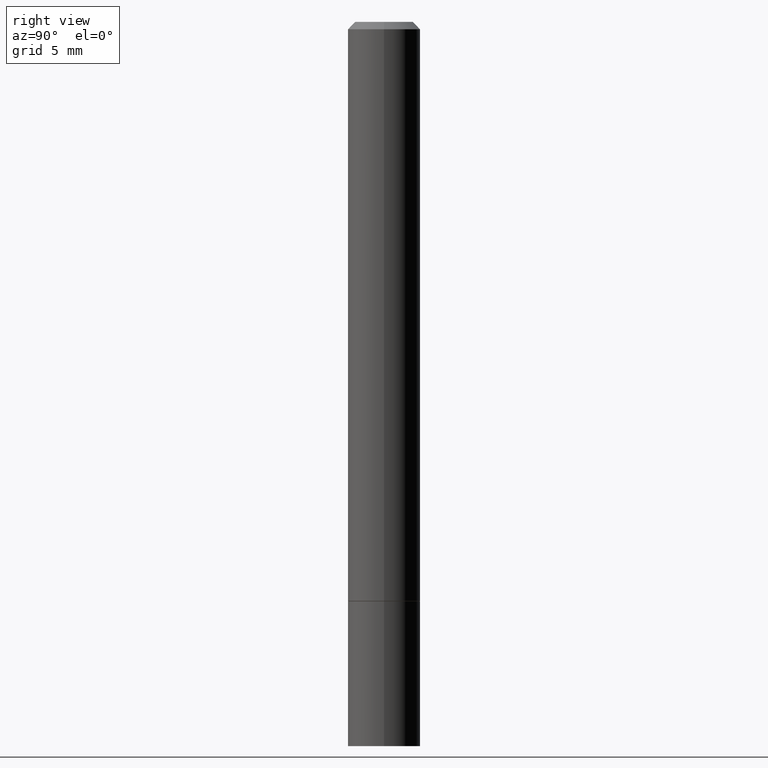
[diagram: clean part render]
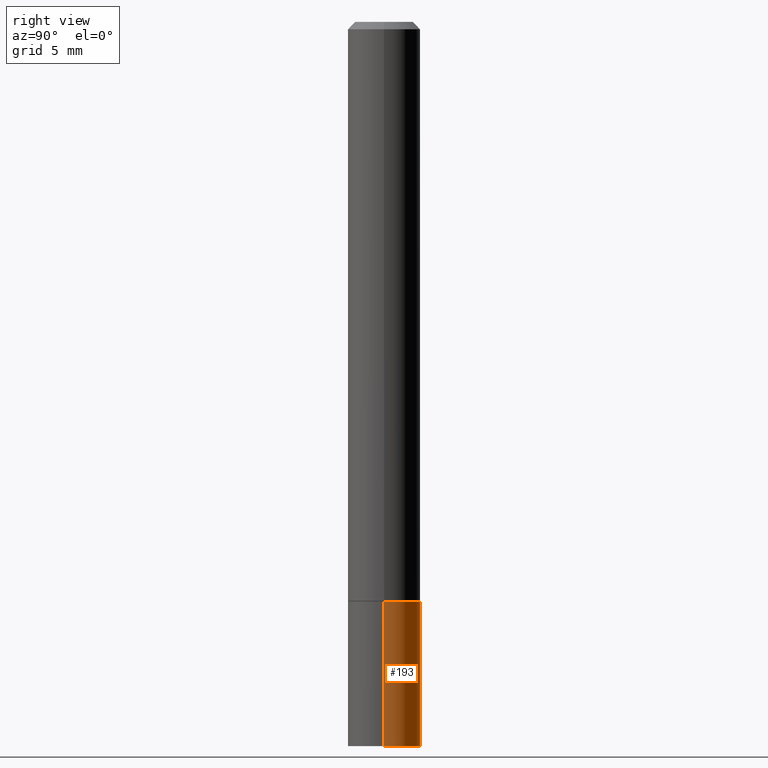
[diagram: same view with one face highlighted and labeled with its STEP entity id]
A machine part, right view. The second image highlights one B-rep face of the part: STEP entity #193.
In plain terms, the highlighted cylindrical surface (edge-blend (fillet) strip) has radius 2.5006 mm, axis along (-0, 0, 1).
Its self-contained STEP definition (entity closure, byte-faithful):
#27 = ORIENTED_EDGE ( 'NONE', *, *, #136, .T. ) ;
#32 = CIRCLE ( 'NONE', #357, 0.09844999999999999585 ) ;
#60 = AXIS2_PLACEMENT_3D ( 'NONE', #291, #290, #233 ) ;
#64 = DIRECTION ( 'NONE',  ( 1.000000000000000000, -6.982962677686265922E-15, 0.000000000000000000 ) ) ;
#78 = CARTESIAN_POINT ( 'NONE',  ( 3.851124275980353356E-29, -5.498384812410186155E-15, -1.574800000000000200 ) ) ;
#79 = DIRECTION ( 'NONE',  ( -2.445468806185136597E-29, 3.491481338843145583E-15, 1.000000000000000000 ) ) ;
#83 = VECTOR ( 'NONE', #196, 39.37007874015748143 ) ;
#84 = ORIENTED_EDGE ( 'NONE', *, *, #315, .T. ) ;
#87 = VERTEX_POINT ( 'NONE', #175 ) ;
#90 = VERTEX_POINT ( 'NONE', #202 ) ;
#93 = DIRECTION ( 'NONE',  ( -2.445468806185136597E-29, 3.491481338843145583E-15, 1.000000000000000000 ) ) ;
#96 = CARTESIAN_POINT ( 'NONE',  ( -0.09844999999999999585, -5.486153590605640426E-15, -1.574800000000000200 ) ) ;
#108 = ORIENTED_EDGE ( 'NONE', *, *, #143, .F. ) ;
#113 = VECTOR ( 'NONE', #259, 39.37007874015748143 ) ;
#123 = CARTESIAN_POINT ( 'NONE',  ( 0.09844999999999999585, -6.874726756182129545E-16, 4.800596035771099214E-30 ) ) ;
#128 = CARTESIAN_POINT ( 'NONE',  ( 0.09844999999999999585, -7.560453691130944267E-15, -1.968500000000000139 ) ) ;
#136 = EDGE_CURVE ( 'NONE', #249, #90, #32, .T. ) ;
#141 = CIRCLE ( 'NONE', #250, 0.09844999999999999585 ) ;
#143 = EDGE_CURVE ( 'NONE', #249, #87, #327, .T. ) ;
#175 = CARTESIAN_POINT ( 'NONE',  ( 0.09844999999999999585, -6.185857488028398715E-15, -1.574800000000000200 ) ) ;
#184 = DIRECTION ( 'NONE',  ( 1.000000000000000000, -6.982962677686265922E-15, 0.000000000000000000 ) ) ;
#188 = EDGE_LOOP ( 'NONE', ( #27, #84, #365, #108 ) ) ;
#193 = ADVANCED_FACE ( 'NONE', ( #239 ), #232, .T. ) ;
#196 = DIRECTION ( 'NONE',  ( -2.445468806185136877E-29, 3.491481338843145188E-15, 1.000000000000000000 ) ) ;
#198 = VERTEX_POINT ( 'NONE', #96 ) ;
#202 = CARTESIAN_POINT ( 'NONE',  ( -0.09844999999999999585, -5.486153590605640426E-15, -1.968500000000000139 ) ) ;
#232 = CYLINDRICAL_SURFACE ( 'NONE', #60, 0.09844999999999999585 ) ;
#233 = DIRECTION ( 'NONE',  ( 1.000000000000000000, -6.982962677686266711E-15, 4.876176775795936353E-29 ) ) ;
#239 = FACE_OUTER_BOUND ( 'NONE', #188, .T. ) ;
#249 = VERTEX_POINT ( 'NONE', #128 ) ;
#250 = AXIS2_PLACEMENT_3D ( 'NONE', #78, #79, #184 ) ;
#259 = DIRECTION ( 'NONE',  ( -2.445468806185136877E-29, 3.491481338843145188E-15, 1.000000000000000000 ) ) ;
#260 = LINE ( 'NONE', #321, #83 ) ;
#287 = CARTESIAN_POINT ( 'NONE',  ( 4.813905344975441835E-29, -6.872981015512731707E-15, -1.968500000000000139 ) ) ;
#289 = EDGE_CURVE ( 'NONE', #87, #198, #141, .T. ) ;
#290 = DIRECTION ( 'NONE',  ( -2.445468806185136597E-29, 3.491481338843145583E-15, 1.000000000000000000 ) ) ;
#291 = CARTESIAN_POINT ( 'NONE',  ( 0.000000000000000000, 0.000000000000000000, 0.000000000000000000 ) ) ;
#315 = EDGE_CURVE ( 'NONE', #90, #198, #260, .T. ) ;
#321 = CARTESIAN_POINT ( 'NONE',  ( -0.09844999999999999585, 6.995293233558186035E-16, -4.842691596355954042E-30 ) ) ;
#327 = LINE ( 'NONE', #123, #113 ) ;
#357 = AXIS2_PLACEMENT_3D ( 'NONE', #287, #93, #64 ) ;
#365 = ORIENTED_EDGE ( 'NONE', *, *, #289, .F. ) ;